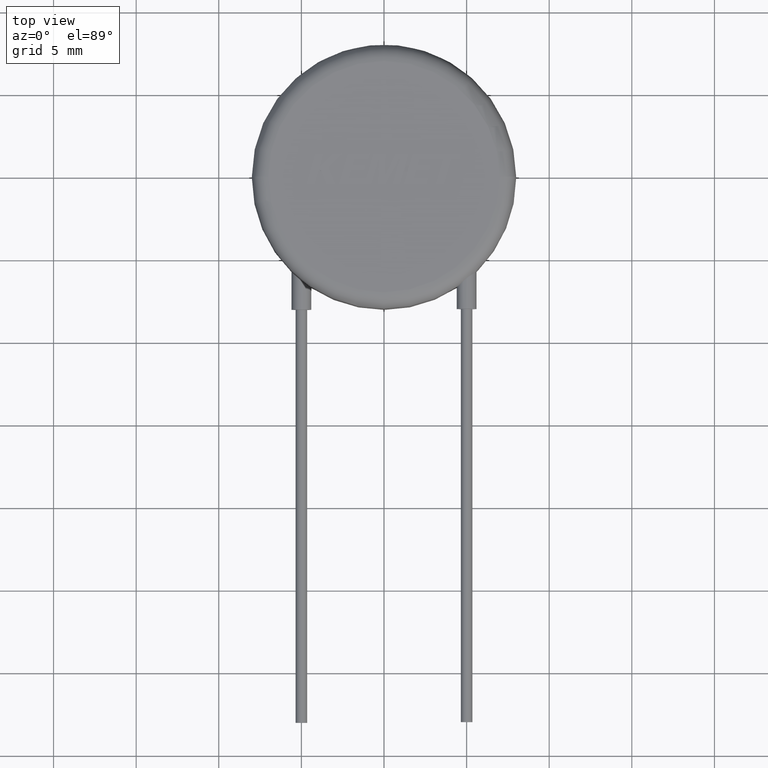
[diagram: clean part render]
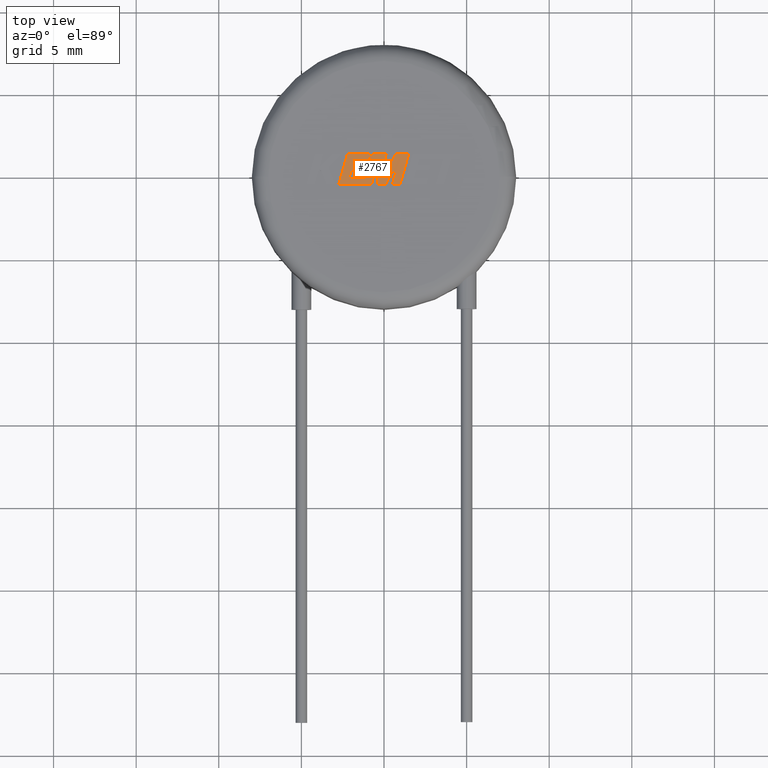
[diagram: same view with one face highlighted and labeled with its STEP entity id]
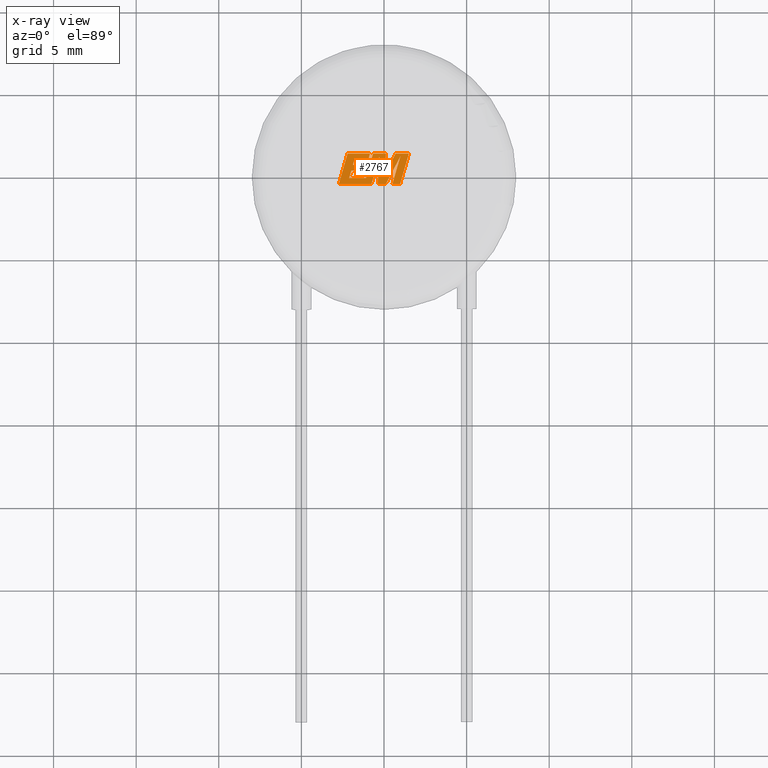
[diagram: x-ray of the same camera — body ghosted, the highlighted face saturated]
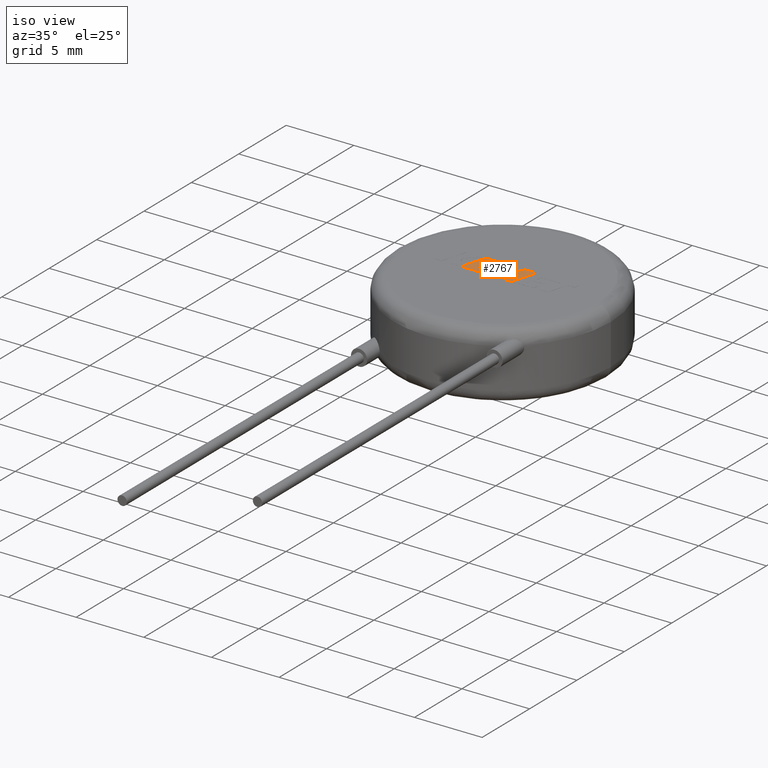
[diagram: same view with one face highlighted and labeled with its STEP entity id]
A machine part, top view. The second image highlights one B-rep face of the part: STEP entity #2767.
The next image is the same camera in x-ray: the body ghosted, the highlighted face saturated — about 0% of this face is hidden behind the body in this view.
A second angle (iso view) of the same face is appended — the face is thin or edge-on in the first view.
In plain terms, the highlighted planar face has unit normal (0, 0, -1).
Its self-contained STEP definition (entity closure, byte-faithful):
#29 = EDGE_LOOP ( 'NONE', ( #831, #2882, #2950, #1739, #2587, #3242, #2638, #1777, #2817, #1052, #383, #2269, #1623, #156, #3227, #2445, #2462, #368, #1064, #1182, #3275, #220, #2032 ) ) ;
#30 = CARTESIAN_POINT ( 'NONE',  ( -0.6635320626051351978, 1.392404873501481344, 5.004999999999999893 ) ) ;
#35 = CARTESIAN_POINT ( 'NONE',  ( 0.5108706928720705420, -0.4463250368678163826, 5.004999999999999893 ) ) ;
#49 = LINE ( 'NONE', #1551, #1585 ) ;
#52 = VERTEX_POINT ( 'NONE', #1430 ) ;
#56 = CARTESIAN_POINT ( 'NONE',  ( -2.734438790809887276, -0.4463250368678172153, 5.004999999999999893 ) ) ;
#70 = DIRECTION ( 'NONE',  ( 0.2759782365590628395, 0.9611638845408986276, 0.000000000000000000 ) ) ;
#83 = VERTEX_POINT ( 'NONE', #121 ) ;
#88 = CARTESIAN_POINT ( 'NONE',  ( 0.1148931549349949816, -0.4463250368678166047, 5.004999999999999893 ) ) ;
#112 = CARTESIAN_POINT ( 'NONE',  ( 1.506768792901826970, 1.392404873501481788, 5.004999999999999893 ) ) ;
#121 = CARTESIAN_POINT ( 'NONE',  ( 0.9781203858598551681, -0.4463250368678163826, 5.004999999999999893 ) ) ;
#128 = EDGE_CURVE ( 'NONE', #3074, #1566, #2815, .T. ) ;
#136 = VECTOR ( 'NONE', #3092, 1000.000000000000000 ) ;
#141 = CARTESIAN_POINT ( 'NONE',  ( -0.2835387661257833258, 1.190647871675215352, 5.004999999999999893 ) ) ;
#156 = ORIENTED_EDGE ( 'NONE', *, *, #274, .T. ) ;
#195 = EDGE_CURVE ( 'NONE', #2720, #596, #461, .T. ) ;
#208 = CARTESIAN_POINT ( 'NONE',  ( -1.980579764965901823, 0.3604905181520938751, 5.004999999999999893 ) ) ;
#220 = ORIENTED_EDGE ( 'NONE', *, *, #3346, .T. ) ;
#274 = EDGE_CURVE ( 'NONE', #1234, #52, #756, .T. ) ;
#311 = VECTOR ( 'NONE', #2304, 1000.000000000000000 ) ;
#325 = EDGE_CURVE ( 'NONE', #2141, #1389, #1102, .T. ) ;
#345 = VECTOR ( 'NONE', #1383, 1000.000000000000000 ) ;
#368 = ORIENTED_EDGE ( 'NONE', *, *, #2619, .T. ) ;
#383 = ORIENTED_EDGE ( 'NONE', *, *, #2771, .T. ) ;
#393 = CARTESIAN_POINT ( 'NONE',  ( -1.883600881883110478, 0.7004086037278132171, 5.004999999999999893 ) ) ;
#394 = LINE ( 'NONE', #3416, #2661 ) ;
#417 = FACE_OUTER_BOUND ( 'NONE', #29, .T. ) ;
#451 = DIRECTION ( 'NONE',  ( 0.2793947940878252489, 0.9601763114327606097, 0.000000000000000000 ) ) ;
#461 = LINE ( 'NONE', #1815, #566 ) ;
#521 = CARTESIAN_POINT ( 'NONE',  ( -1.784083752927104971, 1.042412076331241000, 5.004999999999999893 ) ) ;
#525 = DIRECTION ( 'NONE',  ( -0.4443210308329211822, -0.8958676361826953816, 0.000000000000000000 ) ) ;
#562 = VECTOR ( 'NONE', #1957, 1000.000000000000114 ) ;
#566 = VECTOR ( 'NONE', #1835, 1000.000000000000000 ) ;
#579 = VERTEX_POINT ( 'NONE', #3028 ) ;
#582 = VECTOR ( 'NONE', #70, 1000.000000000000114 ) ;
#596 = VERTEX_POINT ( 'NONE', #3274 ) ;
#642 = VECTOR ( 'NONE', #928, 1000.000000000000114 ) ;
#670 = CARTESIAN_POINT ( 'NONE',  ( -1.883600881883110478, 0.7004086037278132171, 5.004999999999999893 ) ) ;
#673 = DIRECTION ( 'NONE',  ( 0.2746459304916876731, 0.9615454294334485619, 0.000000000000000000 ) ) ;
#700 = AXIS2_PLACEMENT_3D ( 'NONE', #2327, #1259, #1503 ) ;
#725 = EDGE_CURVE ( 'NONE', #596, #2786, #3460, .T. ) ;
#749 = LINE ( 'NONE', #1506, #2611 ) ;
#752 = DIRECTION ( 'NONE',  ( 0.2763139702539118003, 0.9610674221107071702, 0.000000000000000000 ) ) ;
#756 = LINE ( 'NONE', #2617, #3260 ) ;
#768 = LINE ( 'NONE', #2663, #901 ) ;
#799 = VECTOR ( 'NONE', #2684, 1000.000000000000114 ) ;
#809 = EDGE_CURVE ( 'NONE', #3259, #1234, #2775, .T. ) ;
#831 = ORIENTED_EDGE ( 'NONE', *, *, #195, .T. ) ;
#837 = CARTESIAN_POINT ( 'NONE',  ( -2.110790660100091198, -0.09650555604264220155, 5.004999999999999893 ) ) ;
#887 = LINE ( 'NONE', #56, #345 ) ;
#898 = VERTEX_POINT ( 'NONE', #837 ) ;
#901 = VECTOR ( 'NONE', #2148, 1000.000000000000000 ) ;
#928 = DIRECTION ( 'NONE',  ( 0.05375259206908304666, 0.9985542843760947251, 0.000000000000000000 ) ) ;
#967 = VERTEX_POINT ( 'NONE', #3397 ) ;
#994 = CARTESIAN_POINT ( 'NONE',  ( -0.8469343040770292985, 1.392404873501481344, 5.004999999999999893 ) ) ;
#1052 = ORIENTED_EDGE ( 'NONE', *, *, #1112, .T. ) ;
#1054 = LINE ( 'NONE', #1912, #799 ) ;
#1055 = CARTESIAN_POINT ( 'NONE',  ( -0.9463396160344149655, 1.042412076331241000, 5.004999999999999893 ) ) ;
#1064 = ORIENTED_EDGE ( 'NONE', *, *, #128, .T. ) ;
#1067 = EDGE_CURVE ( 'NONE', #579, #1822, #887, .T. ) ;
#1095 = CARTESIAN_POINT ( 'NONE',  ( -1.094396504180112695, 0.7004086037278132171, 5.004999999999999893 ) ) ;
#1102 = LINE ( 'NONE', #30, #2087 ) ;
#1112 = EDGE_CURVE ( 'NONE', #1890, #2216, #394, .T. ) ;
#1147 = VECTOR ( 'NONE', #1306, 1000.000000000000000 ) ;
#1157 = CARTESIAN_POINT ( 'NONE',  ( -1.784083752927104971, 1.042412076331241000, 5.004999999999999893 ) ) ;
#1171 = LINE ( 'NONE', #2021, #136 ) ;
#1182 = ORIENTED_EDGE ( 'NONE', *, *, #1333, .T. ) ;
#1195 = CARTESIAN_POINT ( 'NONE',  ( 0.9832192410060645038, 1.198530970088394598, 5.004999999999999893 ) ) ;
#1220 = CARTESIAN_POINT ( 'NONE',  ( -1.091500443915926599, -0.09650555604264220155, 5.004999999999999893 ) ) ;
#1223 = LINE ( 'NONE', #670, #2519 ) ;
#1234 = VERTEX_POINT ( 'NONE', #994 ) ;
#1257 = DIRECTION ( 'NONE',  ( -1.000000000000000000, 0.000000000000000000, 0.000000000000000000 ) ) ;
#1259 = DIRECTION ( 'NONE',  ( 0.000000000000000000, 0.000000000000000000, -1.000000000000000000 ) ) ;
#1273 = EDGE_CURVE ( 'NONE', #1590, #2141, #49, .T. ) ;
#1299 = DIRECTION ( 'NONE',  ( -1.000000000000000000, -1.516487192649569781E-16, 0.000000000000000000 ) ) ;
#1306 = DIRECTION ( 'NONE',  ( -0.2765379750249959967, -0.9610029908221278117, 0.000000000000000000 ) ) ;
#1325 = VERTEX_POINT ( 'NONE', #141 ) ;
#1333 = EDGE_CURVE ( 'NONE', #1566, #967, #1429, .T. ) ;
#1383 = DIRECTION ( 'NONE',  ( 1.000000000000000000, 1.868648346856604853E-16, 0.000000000000000000 ) ) ;
#1389 = VERTEX_POINT ( 'NONE', #1220 ) ;
#1396 = VECTOR ( 'NONE', #525, 1000.000000000000114 ) ;
#1408 = LINE ( 'NONE', #2496, #582 ) ;
#1429 = LINE ( 'NONE', #88, #3160 ) ;
#1430 = CARTESIAN_POINT ( 'NONE',  ( -2.205326341746206342, 1.392404873501480900, 5.004999999999999893 ) ) ;
#1503 = DIRECTION ( 'NONE',  ( -1.000000000000000000, 0.000000000000000000, 0.000000000000000000 ) ) ;
#1506 = CARTESIAN_POINT ( 'NONE',  ( -2.110790660100091198, -0.09650555604264220155, 5.004999999999999893 ) ) ;
#1550 = LINE ( 'NONE', #208, #3401 ) ;
#1551 = CARTESIAN_POINT ( 'NONE',  ( 0.1195179542924952598, 1.392404873501481344, 5.004999999999999893 ) ) ;
#1556 = CARTESIAN_POINT ( 'NONE',  ( -0.7535615206849134440, -0.4463250368678168267, 5.004999999999999893 ) ) ;
#1566 = VERTEX_POINT ( 'NONE', #2963 ) ;
#1567 = DIRECTION ( 'NONE',  ( 1.000000000000000000, 0.000000000000000000, 0.000000000000000000 ) ) ;
#1572 = CARTESIAN_POINT ( 'NONE',  ( -2.205326341746206342, 1.392404873501480900, 5.004999999999999893 ) ) ;
#1585 = VECTOR ( 'NONE', #2748, 1000.000000000000000 ) ;
#1590 = VERTEX_POINT ( 'NONE', #2173 ) ;
#1615 = EDGE_CURVE ( 'NONE', #967, #2426, #1702, .T. ) ;
#1623 = ORIENTED_EDGE ( 'NONE', *, *, #809, .T. ) ;
#1673 = CARTESIAN_POINT ( 'NONE',  ( -0.3752957953616926079, -0.4463250368678168267, 5.004999999999999893 ) ) ;
#1690 = CARTESIAN_POINT ( 'NONE',  ( -0.6635320626051351978, 1.392404873501481344, 5.004999999999999893 ) ) ;
#1702 = LINE ( 'NONE', #1195, #2672 ) ;
#1722 = LINE ( 'NONE', #1157, #311 ) ;
#1739 = ORIENTED_EDGE ( 'NONE', *, *, #1273, .T. ) ;
#1770 = PLANE ( 'NONE',  #700 ) ;
#1777 = ORIENTED_EDGE ( 'NONE', *, *, #2379, .T. ) ;
#1786 = EDGE_CURVE ( 'NONE', #898, #1965, #749, .T. ) ;
#1791 = LINE ( 'NONE', #3420, #2401 ) ;
#1804 = LINE ( 'NONE', #3095, #3053 ) ;
#1810 = EDGE_CURVE ( 'NONE', #2866, #1890, #1804, .T. ) ;
#1815 = CARTESIAN_POINT ( 'NONE',  ( 1.506768792901826970, 1.392404873501481788, 5.004999999999999893 ) ) ;
#1822 = VERTEX_POINT ( 'NONE', #1556 ) ;
#1835 = DIRECTION ( 'NONE',  ( -1.000000000000000000, 0.000000000000000000, 0.000000000000000000 ) ) ;
#1850 = VERTEX_POINT ( 'NONE', #521 ) ;
#1887 = DIRECTION ( 'NONE',  ( -0.2762517575166162365, -0.9610853065513906834, 0.000000000000000000 ) ) ;
#1890 = VERTEX_POINT ( 'NONE', #1095 ) ;
#1897 = EDGE_CURVE ( 'NONE', #1389, #898, #768, .T. ) ;
#1912 = CARTESIAN_POINT ( 'NONE',  ( -0.2835387661257833258, 1.190647871675215352, 5.004999999999999893 ) ) ;
#1957 = DIRECTION ( 'NONE',  ( 0.2732148821745907785, 0.9619530280415590218, 0.000000000000000000 ) ) ;
#1965 = VERTEX_POINT ( 'NONE', #2243 ) ;
#1971 = CARTESIAN_POINT ( 'NONE',  ( -0.9463396160344149655, 1.042412076331241000, 5.004999999999999893 ) ) ;
#2021 = CARTESIAN_POINT ( 'NONE',  ( 0.5108706928720705420, -0.4463250368678163826, 5.004999999999999893 ) ) ;
#2025 = CARTESIAN_POINT ( 'NONE',  ( -0.3752957953616926079, -0.4463250368678168267, 5.004999999999999893 ) ) ;
#2032 = ORIENTED_EDGE ( 'NONE', *, *, #3165, .T. ) ;
#2087 = VECTOR ( 'NONE', #1887, 1000.000000000000227 ) ;
#2141 = VERTEX_POINT ( 'NONE', #1690 ) ;
#2148 = DIRECTION ( 'NONE',  ( -1.000000000000000000, 0.000000000000000000, 0.000000000000000000 ) ) ;
#2173 = CARTESIAN_POINT ( 'NONE',  ( 0.1195179542924952598, 1.392404873501481344, 5.004999999999999893 ) ) ;
#2216 = VERTEX_POINT ( 'NONE', #393 ) ;
#2243 = CARTESIAN_POINT ( 'NONE',  ( -1.980579764965901823, 0.3604905181520938751, 5.004999999999999893 ) ) ;
#2252 = DIRECTION ( 'NONE',  ( 0.4668459304955209777, 0.8843386665637612554, 0.000000000000000000 ) ) ;
#2253 = DIRECTION ( 'NONE',  ( 1.000000000000000000, 4.202428729728918664E-16, 0.000000000000000000 ) ) ;
#2269 = ORIENTED_EDGE ( 'NONE', *, *, #3037, .T. ) ;
#2304 = DIRECTION ( 'NONE',  ( 1.000000000000000000, 0.000000000000000000, 0.000000000000000000 ) ) ;
#2327 = CARTESIAN_POINT ( 'NONE',  ( 0.1208269369785772845, 0.4016925331810349831, 5.004999999999998117 ) ) ;
#2379 = EDGE_CURVE ( 'NONE', #1965, #2866, #1550, .T. ) ;
#2401 = VECTOR ( 'NONE', #752, 1000.000000000000114 ) ;
#2426 = VERTEX_POINT ( 'NONE', #35 ) ;
#2445 = ORIENTED_EDGE ( 'NONE', *, *, #1067, .T. ) ;
#2453 = CARTESIAN_POINT ( 'NONE',  ( 0.7003143599246278717, 1.392404873501481788, 5.004999999999999893 ) ) ;
#2462 = ORIENTED_EDGE ( 'NONE', *, *, #2485, .T. ) ;
#2485 = EDGE_CURVE ( 'NONE', #1822, #1325, #1408, .T. ) ;
#2496 = CARTESIAN_POINT ( 'NONE',  ( -0.7535615206849134440, -0.4463250368678168267, 5.004999999999999893 ) ) ;
#2519 = VECTOR ( 'NONE', #451, 1000.000000000000114 ) ;
#2587 = ORIENTED_EDGE ( 'NONE', *, *, #325, .T. ) ;
#2611 = VECTOR ( 'NONE', #3161, 1000.000000000000000 ) ;
#2617 = CARTESIAN_POINT ( 'NONE',  ( -0.8469343040770292985, 1.392404873501481344, 5.004999999999999893 ) ) ;
#2619 = EDGE_CURVE ( 'NONE', #1325, #3074, #1054, .T. ) ;
#2638 = ORIENTED_EDGE ( 'NONE', *, *, #1786, .T. ) ;
#2649 = CARTESIAN_POINT ( 'NONE',  ( -1.191487204261650668, 0.3604905181520938751, 5.004999999999999893 ) ) ;
#2661 = VECTOR ( 'NONE', #1257, 1000.000000000000000 ) ;
#2663 = CARTESIAN_POINT ( 'NONE',  ( -1.091500443915926599, -0.09650555604264220155, 5.004999999999999893 ) ) ;
#2672 = VECTOR ( 'NONE', #2796, 1000.000000000000227 ) ;
#2684 = DIRECTION ( 'NONE',  ( -0.05596501978069263333, -0.9984327301130240251, 0.000000000000000000 ) ) ;
#2720 = VERTEX_POINT ( 'NONE', #112 ) ;
#2748 = DIRECTION ( 'NONE',  ( -1.000000000000000000, 2.630718451273292658E-16, 0.000000000000000000 ) ) ;
#2767 = ADVANCED_FACE ( 'NONE', ( #417 ), #1770, .F. ) ;
#2771 = EDGE_CURVE ( 'NONE', #2216, #1850, #1223, .T. ) ;
#2775 = LINE ( 'NONE', #1971, #562 ) ;
#2786 = VERTEX_POINT ( 'NONE', #3159 ) ;
#2796 = DIRECTION ( 'NONE',  ( -0.2760118818968562704, -0.9611542233438689076, 0.000000000000000000 ) ) ;
#2815 = LINE ( 'NONE', #1673, #3206 ) ;
#2816 = EDGE_CURVE ( 'NONE', #52, #579, #2923, .T. ) ;
#2817 = ORIENTED_EDGE ( 'NONE', *, *, #1810, .T. ) ;
#2866 = VERTEX_POINT ( 'NONE', #2649 ) ;
#2882 = ORIENTED_EDGE ( 'NONE', *, *, #725, .T. ) ;
#2923 = LINE ( 'NONE', #1572, #1147 ) ;
#2950 = ORIENTED_EDGE ( 'NONE', *, *, #3066, .T. ) ;
#2963 = CARTESIAN_POINT ( 'NONE',  ( 0.1148931549349949816, -0.4463250368678166047, 5.004999999999999893 ) ) ;
#3028 = CARTESIAN_POINT ( 'NONE',  ( -2.734438790809887276, -0.4463250368678172153, 5.004999999999999893 ) ) ;
#3037 = EDGE_CURVE ( 'NONE', #1850, #3259, #1722, .T. ) ;
#3053 = VECTOR ( 'NONE', #673, 1000.000000000000114 ) ;
#3066 = EDGE_CURVE ( 'NONE', #2786, #1590, #3083, .T. ) ;
#3074 = VERTEX_POINT ( 'NONE', #2025 ) ;
#3083 = LINE ( 'NONE', #3364, #642 ) ;
#3092 = DIRECTION ( 'NONE',  ( 1.000000000000000000, 0.000000000000000000, 0.000000000000000000 ) ) ;
#3095 = CARTESIAN_POINT ( 'NONE',  ( -1.191487204261650668, 0.3604905181520938751, 5.004999999999999893 ) ) ;
#3159 = CARTESIAN_POINT ( 'NONE',  ( 0.04880565978952582096, 0.07879260075274539810, 5.004999999999999893 ) ) ;
#3160 = VECTOR ( 'NONE', #2252, 1000.000000000000227 ) ;
#3161 = DIRECTION ( 'NONE',  ( 0.2740217765954052198, 0.9617234872620600283, 0.000000000000000000 ) ) ;
#3165 = EDGE_CURVE ( 'NONE', #83, #2720, #1791, .T. ) ;
#3206 = VECTOR ( 'NONE', #2253, 1000.000000000000000 ) ;
#3227 = ORIENTED_EDGE ( 'NONE', *, *, #2816, .T. ) ;
#3242 = ORIENTED_EDGE ( 'NONE', *, *, #1897, .T. ) ;
#3259 = VERTEX_POINT ( 'NONE', #1055 ) ;
#3260 = VECTOR ( 'NONE', #1299, 1000.000000000000000 ) ;
#3274 = CARTESIAN_POINT ( 'NONE',  ( 0.7003143599246278717, 1.392404873501481788, 5.004999999999999893 ) ) ;
#3275 = ORIENTED_EDGE ( 'NONE', *, *, #1615, .T. ) ;
#3346 = EDGE_CURVE ( 'NONE', #2426, #83, #1171, .T. ) ;
#3364 = CARTESIAN_POINT ( 'NONE',  ( 0.04880565978952582096, 0.07879260075274539810, 5.004999999999999893 ) ) ;
#3397 = CARTESIAN_POINT ( 'NONE',  ( 0.9832192410060645038, 1.198530970088394598, 5.004999999999999893 ) ) ;
#3401 = VECTOR ( 'NONE', #1567, 1000.000000000000000 ) ;
#3416 = CARTESIAN_POINT ( 'NONE',  ( -1.094396504180112695, 0.7004086037278132171, 5.004999999999999893 ) ) ;
#3420 = CARTESIAN_POINT ( 'NONE',  ( 0.9781203858598551681, -0.4463250368678163826, 5.004999999999999893 ) ) ;
#3460 = LINE ( 'NONE', #2453, #1396 ) ;